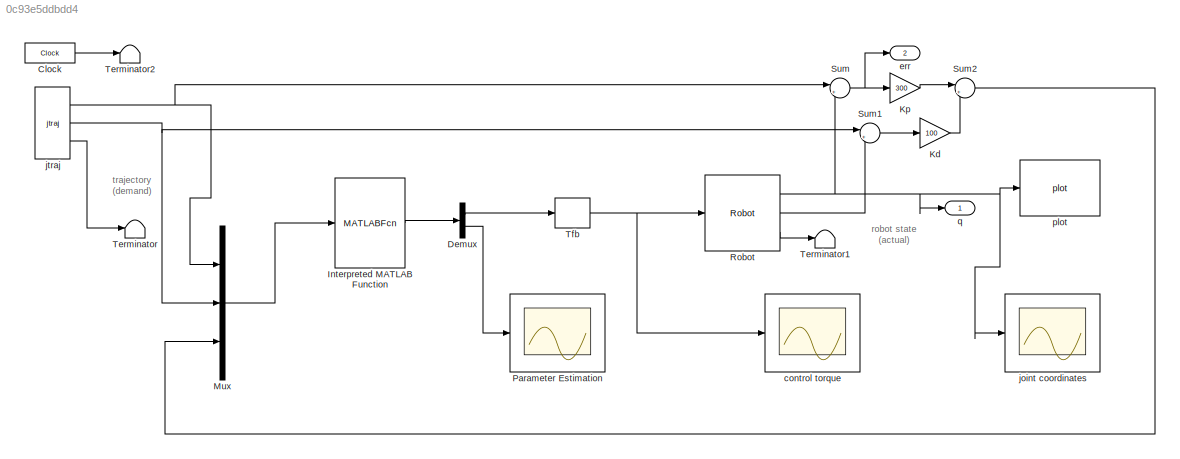
MODEL slx_0c93e5ddbdd4
KIND model
CONFIG PreLoadFcn = puma560\np560 = nofriction(p560);
BLOCK [Clock] Clock
  DisplayTime = on
BLOCK [Demux] Demux
  DisplayOption = bar
  Outputs = 2
  Ports = [1, 2]
BLOCK [MATLABFcn] Interpreted MATLAB Function
  MATLABFcn = W_adapt_matrix(u(1:4),u(5:8),u(9:12))
  OutputDimensions = 9
  OutputSignalType = real
  Ports = [1, 1]
BLOCK [Gain] Kd
  Gain = 100
BLOCK [Gain] Kp
  Gain = 300
BLOCK [Mux] Mux
  DisplayOption = bar
  Inputs = 3
  Ports = [3, 1]
BLOCK [Scope] Parameter Estimation
  DataFormat = StructureWithTime
  Floating = off
  NumInputPorts = 1
  Ports = [1]
  SampleTime = 0
  SaveName = ScopeData2
  ShowLegends = off
  TimeRange = 0.14
  YMax = 0.0015
  YMin = -8.13152e-20
BLOCK [Reference] Robot  REF=roblocks/Dynamics/Robot  (lib defined in mdl_2a292b13c81b, mdl_69400f8cfe22, +12 more)
  Ports = [1, 3]
  SourceBlock = roblocks/Dynamics/Robot
  q0 = [0 0 0 0]
  robot = complex_leg.nofriction()
BLOCK [Sum] Sum
  IconShape = round
  Inputs = |+-
  Ports = [2, 1]
BLOCK [Sum] Sum1
  IconShape = round
  Inputs = |+-
  Ports = [2, 1]
BLOCK [Sum] Sum2
  IconShape = round
  Inputs = |++
  Ports = [2, 1]
BLOCK [Terminator] Terminator
BLOCK [Terminator] Terminator1
BLOCK [Terminator] Terminator2
BLOCK [ZeroOrderHold] Tfb
  SampleTime = 0.01
BLOCK [Scope] control torque 
  DataFormat = StructureWithTime
  Floating = off
  NumInputPorts = 1
  Ports = [1]
  SampleTime = 0
  ShowLegends = off
  TimeRange = 10
  YMax = 0.015
  YMin = -0.015
  ZoomMode = xonly
BLOCK [Outport] err
  IconDisplay = Port number
  Port = 2
BLOCK [Scope] joint coordinates
  DataFormat = StructureWithTime
  Floating = off
  NumInputPorts = 1
  Ports = [1]
  SampleTime = 0
  SaveName = ScopeData1
  ShowLegends = off
  TimeRange = 10
  YMax = 0.2
  YMin = -0.375
BLOCK [Reference] jtraj  REF=roblocks/Trajectory/jtraj  (lib defined in mdl_2a292b13c81b, mdl_69400f8cfe22, +12 more)
  Ports = [0, 3]
  SourceBlock = roblocks/Trajectory/jtraj
  q0 = [0 0 0 0]
  qf = [pi/3 -pi/6 pi/4 pi/4 ]
  tmax = 30
  ts = 0.02
BLOCK [Reference] plot  REF=roblocks/Robot Graphics/plot  (lib defined in mdl_2a292b13c81b, mdl_69400f8cfe22, +12 more)
  Ports = [1]
  SourceBlock = roblocks/Robot Graphics/plot
  fps = 25
  holdplot = off
  robot = complex_leg
BLOCK [Outport] q
  IconDisplay = Port number
ANNOTATION (root): robot state (actual)
ANNOTATION (root): trajectory (demand)
LINE Clock:1 -> Terminator2:1
LINE Demux:1 -> Tfb:1
LINE Demux:2 -> Parameter Estimation:1
LINE Interpreted MATLAB Function:1 -> Demux:1
LINE Kd:1 -> Sum2:2
LINE Kp:1 -> Sum2:1
LINE Mux:1 -> Interpreted MATLAB Function:1
NET Robot:1 -> Sum:2, joint coordinates:1, plot:1, q:1
LINE Robot:2 -> Sum1:2
LINE Robot:3 -> Terminator1:1
LINE Sum1:1 -> Kd:1
LINE Sum2:1 -> Mux:3
NET Sum:1 -> Kp:1, err:1
NET Tfb:1 -> Robot:1, control torque :1
NET jtraj:1 -> Mux:1, Sum:1
NET jtraj:2 -> Mux:2, Sum1:1
LINE jtraj:3 -> Terminator:1
note: NET lines group one-source signal fan-out (src -> all destinations, sorted); 1:1 wires keep LINE
